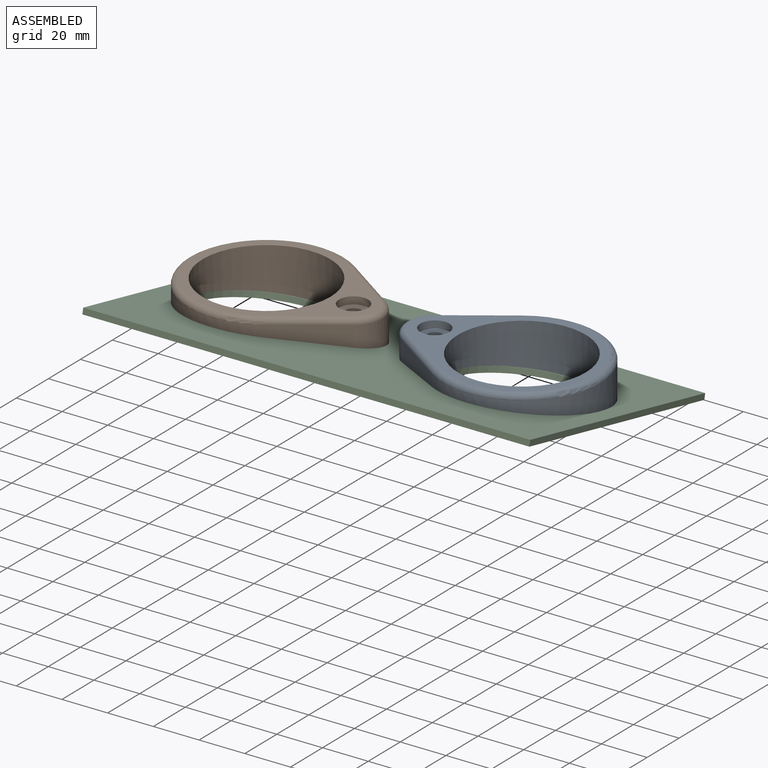
[diagram: assembled view]
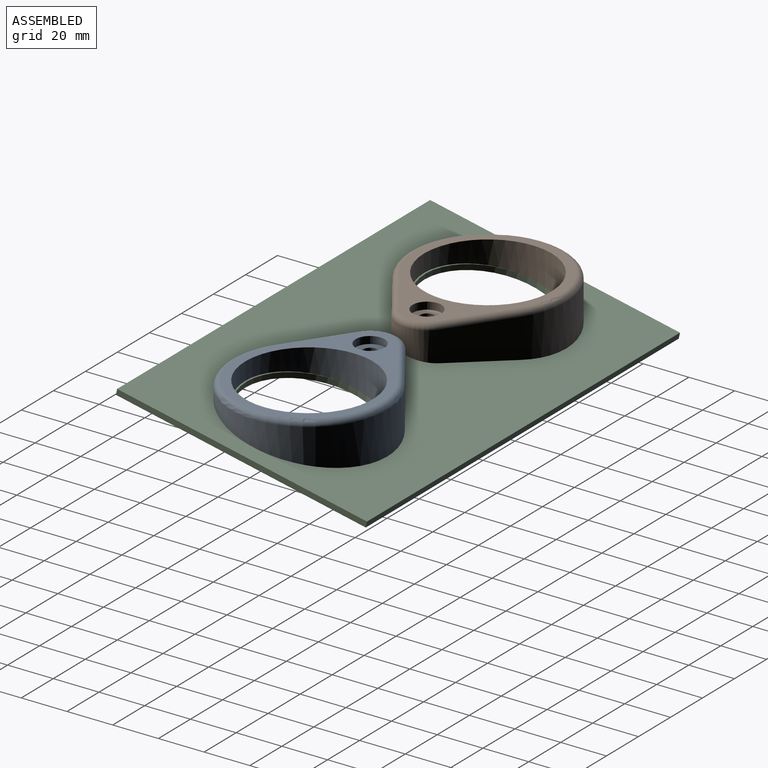
[diagram: assembled view, second angle]
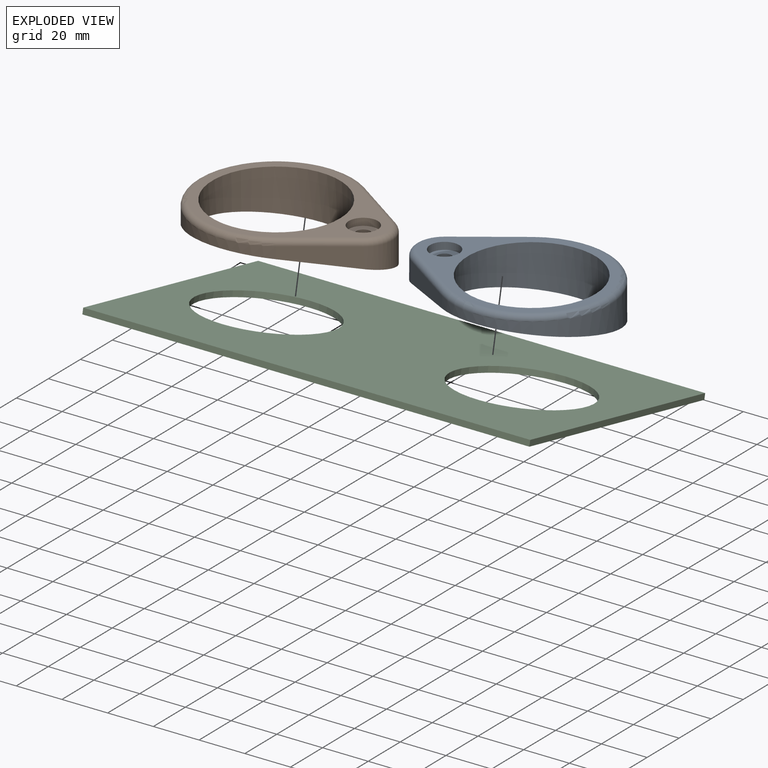
[diagram: exploded view]
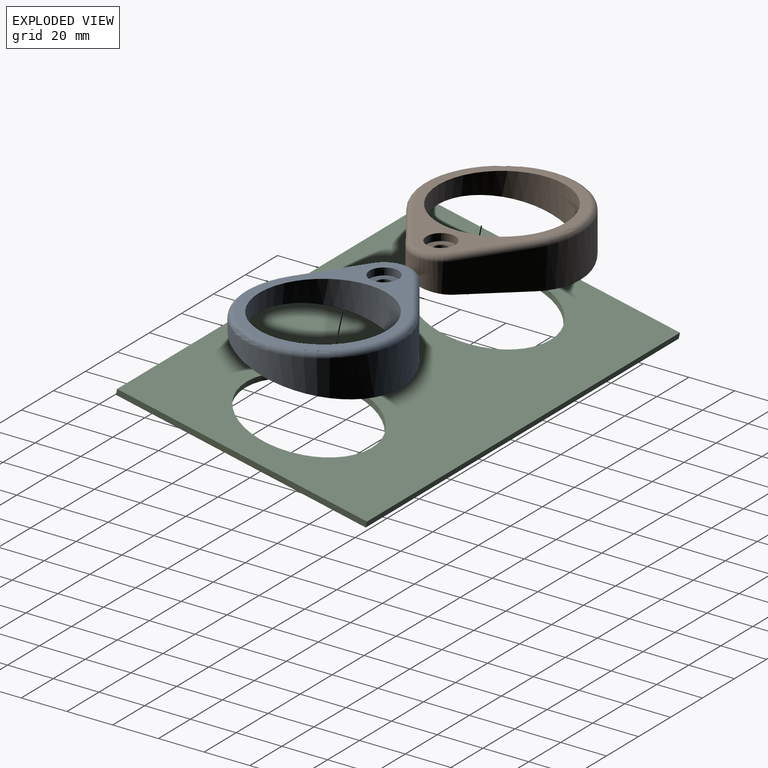
[diagram: exploded view, second angle]
ASSEMBLY  parts=3 mates=2
PART A: 14 faces, bbox 89x74.2x21 mm
  f0: cylinder r=3.17mm len=11.15mm, axis (0,0,-1), area 208.7mm2, adj f1,f13
  f1: plane 12.7x12.7mm, normal (0,0,1), area 95mm2, adj f0,f5
  f2: plane 25.87x17.79mm, normal (-0.57,0.82,0), area 477.6mm2, adj f3,f7,f9,f13
  f3: cylinder r=12.7mm len=20.93mm, axis (0,0,-1), area 273mm2, adj f2,f4,f10,f13
  f4: plane 25.87x17.79mm, normal (-0.57,-0.82,0), area 219.2mm2, adj f3,f7,f12,f13
  f5: cylinder r=6.35mm len=12.7mm, axis (0,0,-1), area 126.7mm2, adj f1,f8
  f6: cylinder r=27.94mm len=55.88mm, axis (0,0,-1), area 2394.3mm2, adj f8,f13
  f7: cylinder r=34.29mm len=68.58mm, axis (0,0,-1), area 1654.1mm2, adj f2,f4,f11,f13
  f8: plane 80.01x63.5mm, normal (0,0,1), area 1027.2mm2, adj f5,f6,f9,f10,f11,f12
  f9: cylinder r=2.54mm len=27.31mm, axis (0.82,0.57,0), area 125.3mm2, adj f2,f8,f10,f11
  f10: torus R=10.16mm, axis (0,0,1), area 91mm2, adj f3,f8,f9,f12
  f11: torus R=31.75mm, axis (0,0,1), area 578.6mm2, adj f7,f8,f9,f12
  f12: cylinder r=2.54mm len=27.31mm, axis (-0.82,0.57,0), area 125.3mm2, adj f4,f8,f10,f11
  f13: plane 85.09x68.58mm, normal (0,-0.21,-0.98), area 1740.5mm2, adj f0,f2,f3,f4,f6,f7
PART B: 14 faces, bbox 89x74.2x21 mm
  f0: cylinder r=3.17mm len=11.15mm, axis (0,0,-1), area 208.7mm2, adj f1,f13
  f1: plane 12.7x12.7mm, normal (0,0,1), area 95mm2, adj f0,f6
  f2: plane 25.87x17.79mm, normal (0.57,0.82,0), area 477.6mm2, adj f3,f7,f11,f13
  f3: cylinder r=34.29mm len=68.58mm, axis (0,0,-1), area 1654.1mm2, adj f2,f4,f9,f13
  f4: plane 25.87x17.79mm, normal (0.57,-0.82,0), area 219.2mm2, adj f3,f7,f10,f13
  f5: cylinder r=27.94mm len=55.88mm, axis (0,0,-1), area 2394.3mm2, adj f8,f13
  f6: cylinder r=6.35mm len=12.7mm, axis (0,0,-1), area 126.7mm2, adj f1,f8
  f7: cylinder r=12.7mm len=20.93mm, axis (0,0,-1), area 273mm2, adj f2,f4,f12,f13
  f8: plane 80.01x63.5mm, normal (0,0,1), area 1027.2mm2, adj f5,f6,f9,f10,f11,f12
  f9: torus R=31.75mm, axis (0,0,1), area 578.6mm2, adj f3,f8,f10,f11
  f10: cylinder r=2.54mm len=27.31mm, axis (-0.82,-0.57,0), area 125.3mm2, adj f4,f8,f9,f12
  f11: cylinder r=2.54mm len=27.31mm, axis (0.82,-0.57,0), area 125.3mm2, adj f2,f8,f9,f12
  f12: torus R=10.16mm, axis (0,0,1), area 91mm2, adj f7,f8,f10,f11
  f13: plane 85.09x68.58mm, normal (0,-0.21,-0.98), area 1740.5mm2, adj f0,f2,f3,f4,f5,f7
PART C: 8 faces, bbox 195.6x109.8x25.7 mm
  f0: plane 195.58x2.48mm, normal (0,0.98,-0.21), area 496.8mm2, adj f1,f5,f6,f7
  f1: plane 109.85x25.72mm, normal (-1,0,0), area 283.9mm2, adj f0,f2,f6,f7
  f2: plane 195.58x2.48mm, normal (0,-0.98,0.21), area 496.8mm2, adj f1,f5,f6,f7
  f3: cylinder r=27.94mm len=55.88mm, axis (0,-0.21,-0.98), area 445.9mm2, adj f6,f7
  f4: cylinder r=27.94mm len=55.88mm, axis (0,-0.21,-0.98), area 445.9mm2, adj f6,f7
  f5: plane 109.85x25.72mm, normal (1,0,0), area 283.9mm2, adj f0,f2,f6,f7
  f6: plane 195.58x109.32mm, normal (0,0.21,0.98), area 16953.1mm2, adj f0,f1,f2,f3,f4,f5
  f7: plane 195.58x109.32mm, normal (0,-0.21,-0.98), area 16953.1mm2, adj f0,f1,f2,f3,f4,f5
PLACE A t=(55.88,-0.95,2.8)mm
PLACE B t=(-55.88,-0.95,2.8)mm
PLACE C at identity
MATE fastened A.f13 <-> C.f4  axis (0,-0.21,-0.98) through (55.88,-0.95,-4.49)mm
MATE fastened B.f13 <-> C.f3  axis (0,-0.21,-0.98) through (-55.88,-0.95,-4.49)mm
